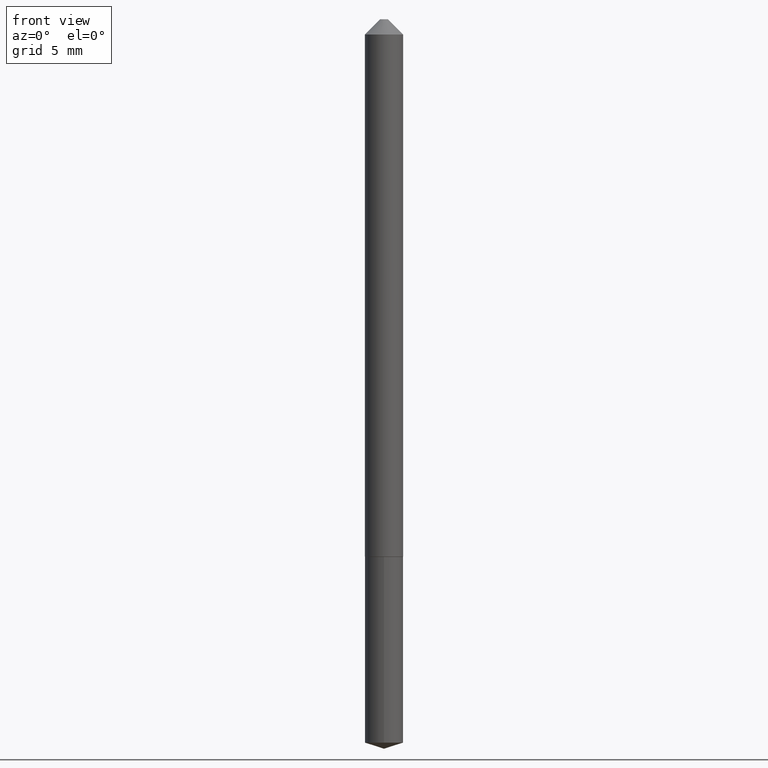
[diagram: clean part render]
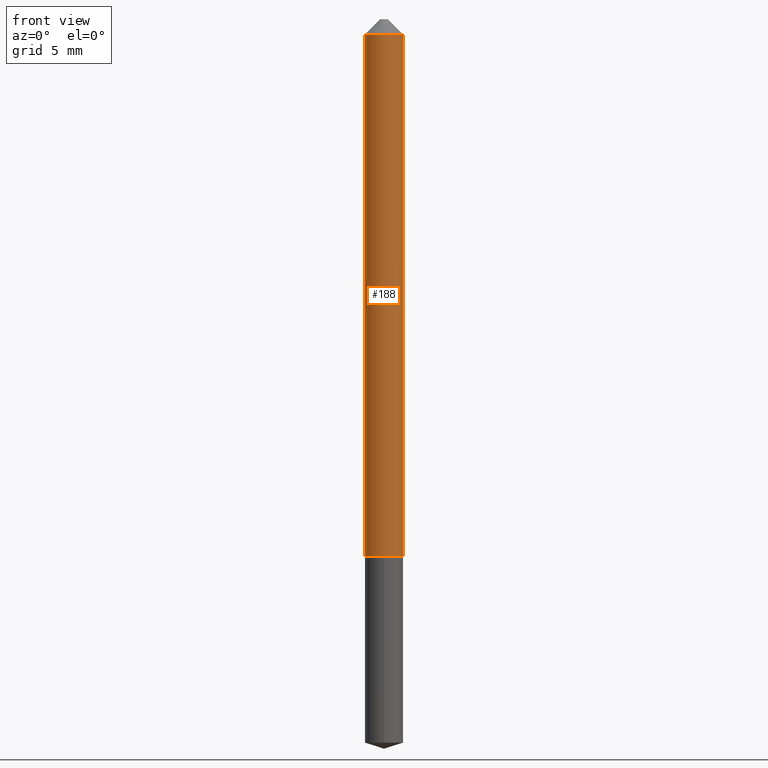
[diagram: same view with one face highlighted and labeled with its STEP entity id]
A machine part, front view. The second image highlights one B-rep face of the part: STEP entity #188.
In plain terms, the highlighted cylindrical surface (edge-blend (fillet) strip) has radius 0.9995 mm, axis along (-0, 0, 1).
Its self-contained STEP definition (entity closure, byte-faithful):
#25 = CARTESIAN_POINT ( 'NONE',  ( 0.03935000000000000997, -3.838883732058036724E-16, -0.03125000000000021511 ) ) ;
#27 = EDGE_CURVE ( 'NONE', #95, #212, #160, .T. ) ;
#38 = ORIENTED_EDGE ( 'NONE', *, *, #213, .F. ) ;
#52 = CARTESIAN_POINT ( 'NONE',  ( 7.642090019328603538E-31, -1.091087918388490390E-16, -0.03125000000000021511 ) ) ;
#58 = LINE ( 'NONE', #175, #338 ) ;
#64 = VERTEX_POINT ( 'NONE', #165 ) ;
#74 = CARTESIAN_POINT ( 'NONE',  ( 0.03935000000000007242, -2.747795813669550648E-16, 1.918775561275704227E-30 ) ) ;
#91 = CIRCLE ( 'NONE', #142, 0.03935000000000000997 ) ;
#95 = VERTEX_POINT ( 'NONE', #379 ) ;
#107 = DIRECTION ( 'NONE',  ( 1.000000000000000000, -6.982962677686273810E-15, 0.000000000000000000 ) ) ;
#110 = ORIENTED_EDGE ( 'NONE', *, *, #27, .T. ) ;
#135 = DIRECTION ( 'NONE',  ( -2.445468806185136877E-29, 3.491481338843145188E-15, 1.000000000000000000 ) ) ;
#142 = AXIS2_PLACEMENT_3D ( 'NONE', #52, #146, #201 ) ;
#145 = EDGE_LOOP ( 'NONE', ( #156, #335, #110, #38 ) ) ;
#146 = DIRECTION ( 'NONE',  ( -2.445468806185136597E-29, 3.491481338843145583E-15, 1.000000000000000000 ) ) ;
#156 = ORIENTED_EDGE ( 'NONE', *, *, #346, .F. ) ;
#160 = LINE ( 'NONE', #74, #269 ) ;
#165 = CARTESIAN_POINT ( 'NONE',  ( -0.03935000000000012099, -3.567664720749661631E-15, -1.101899999999999880 ) ) ;
#169 = DIRECTION ( 'NONE',  ( -2.445468806185136597E-29, 3.491481338843145583E-15, 1.000000000000000000 ) ) ;
#175 = CARTESIAN_POINT ( 'NONE',  ( -0.03935000000000007242, 2.795985665215999377E-16, -1.935600958015308795E-30 ) ) ;
#188 = ADVANCED_FACE ( 'NONE', ( #288 ), #232, .T. ) ;
#201 = DIRECTION ( 'NONE',  ( 1.000000000000000000, -6.982962677686265922E-15, 0.000000000000000000 ) ) ;
#206 = DIRECTION ( 'NONE',  ( -2.445468806185136877E-29, 3.491481338843145188E-15, 1.000000000000000000 ) ) ;
#210 = AXIS2_PLACEMENT_3D ( 'NONE', #318, #291, #355 ) ;
#212 = VERTEX_POINT ( 'NONE', #25 ) ;
#213 = EDGE_CURVE ( 'NONE', #370, #212, #91, .T. ) ;
#229 = CARTESIAN_POINT ( 'NONE',  ( 2.694662077535401669E-29, -3.847263287271261815E-15, -1.101899999999999880 ) ) ;
#232 = CYLINDRICAL_SURFACE ( 'NONE', #210, 0.03935000000000007242 ) ;
#269 = VECTOR ( 'NONE', #135, 39.37007874015748143 ) ;
#273 = CARTESIAN_POINT ( 'NONE',  ( -0.03935000000000000997, -1.698587473033454288E-15, -0.03125000000000021511 ) ) ;
#288 = FACE_OUTER_BOUND ( 'NONE', #145, .T. ) ;
#291 = DIRECTION ( 'NONE',  ( -2.445468806185136597E-29, 3.491481338843145583E-15, 1.000000000000000000 ) ) ;
#297 = EDGE_CURVE ( 'NONE', #64, #95, #348, .T. ) ;
#318 = CARTESIAN_POINT ( 'NONE',  ( 0.000000000000000000, 0.000000000000000000, 0.000000000000000000 ) ) ;
#335 = ORIENTED_EDGE ( 'NONE', *, *, #297, .T. ) ;
#338 = VECTOR ( 'NONE', #206, 39.37007874015748143 ) ;
#346 = EDGE_CURVE ( 'NONE', #64, #370, #58, .T. ) ;
#348 = CIRCLE ( 'NONE', #378, 0.03935000000000012099 ) ;
#355 = DIRECTION ( 'NONE',  ( 1.000000000000000000, -6.982962677686265922E-15, 4.876176775795935793E-29 ) ) ;
#370 = VERTEX_POINT ( 'NONE', #273 ) ;
#378 = AXIS2_PLACEMENT_3D ( 'NONE', #229, #169, #107 ) ;
#379 = CARTESIAN_POINT ( 'NONE',  ( 0.03935000000000012099, -4.122042868638216732E-15, -1.101899999999999880 ) ) ;